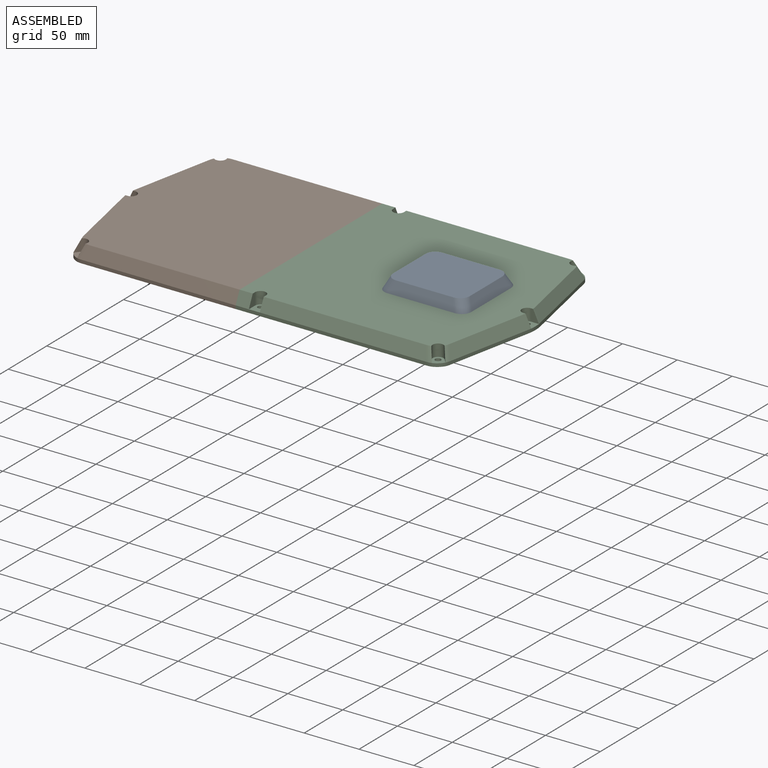
[diagram: assembled view]
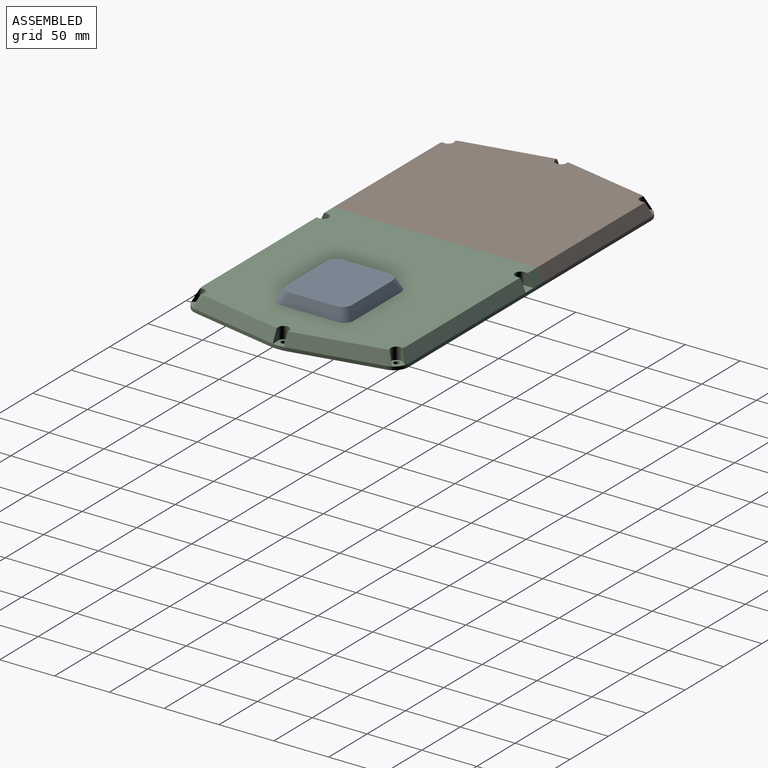
[diagram: assembled view, second angle]
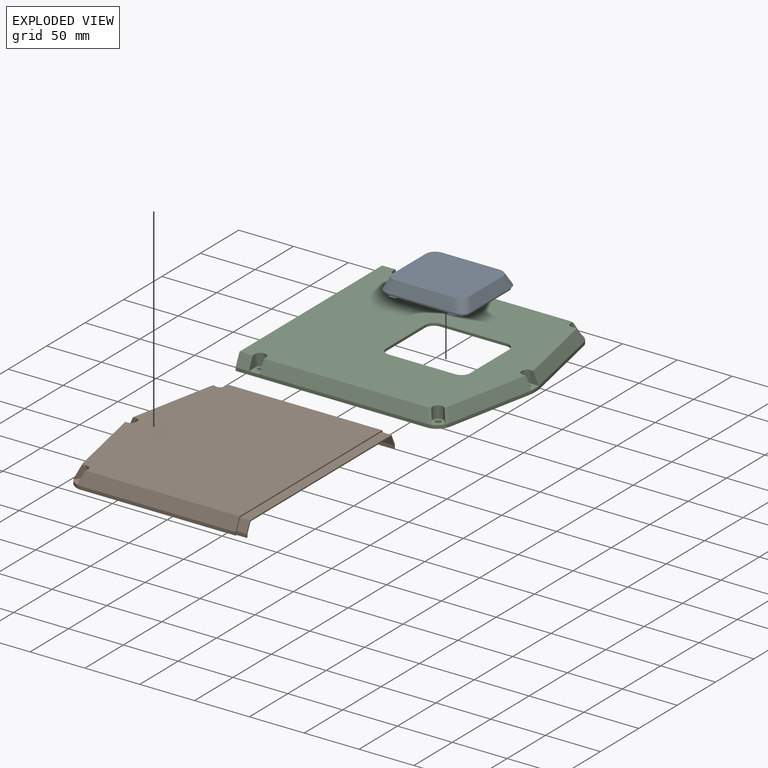
[diagram: exploded view]
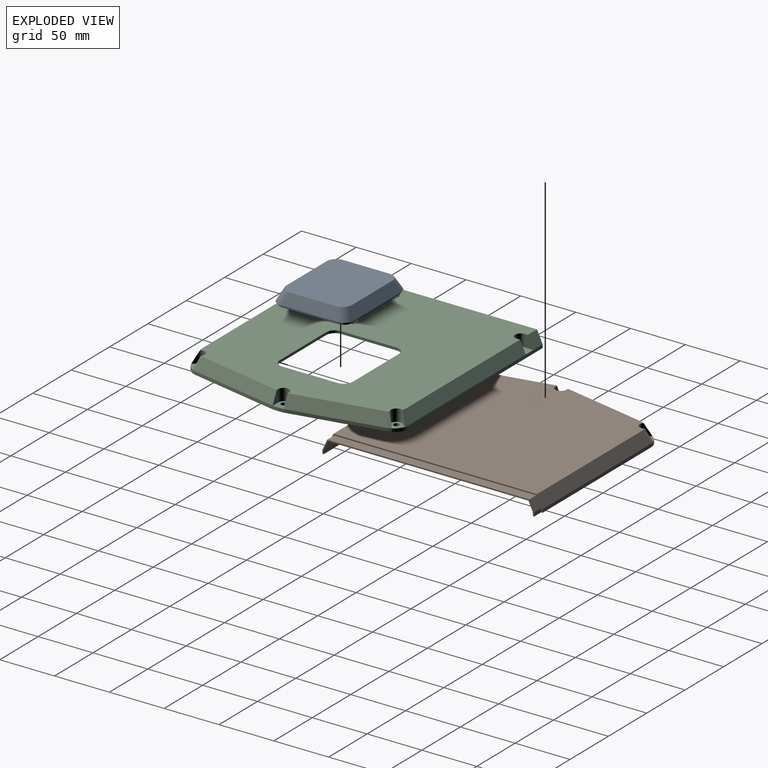
[diagram: exploded view, second angle]
ASSEMBLY  parts=3 mates=2
PART A: 79 faces, bbox 80.7x70.7x15 mm
  f0: plane 60.27x2.35mm, normal (0,1,0), area 141.6mm2, adj f3,f5,f20,f21,f34,f36
  f1: plane 66.37x6.95mm, normal (0,0,-1), area 113.6mm2, adj f18,f19,f20,f43,f48,f59,f61,f62
  f2: plane 66.37x6.95mm, normal (0,0,-1), area 113.6mm2, adj f15,f16,f21,f45,f47,f57,f58,f70
  f3: plane 45.78x1.6mm, normal (0,0,-1), area 73.2mm2, adj f0,f42,f44,f76
  f4: plane 45.78x1.6mm, normal (0,0,-1), area 73.2mm2, adj f17,f46,f49,f68
  f5: plane 79.33x69.33mm, normal (0,0,-1), area 393.8mm2, adj f0,f6,f7,f8,f9,f11,f12,f13
  f6: plane 61.2x10mm, normal (0,0.91,0.42), area 623.8mm2, adj f5,f10,f11,f14
  f7: plane 51.2x10mm, normal (-0.91,0,0.42), area 513.5mm2, adj f5,f10,f11,f12
  f8: plane 61.2x10mm, normal (0,-0.91,0.42), area 623.8mm2, adj f5,f10,f12,f13
  f9: plane 51.2x10mm, normal (0.91,0,0.42), area 513.5mm2, adj f5,f10,f13,f14
  f10: plane 70x60mm, normal (0,0,1), area 4133.3mm2, adj f6,f7,f8,f9,f11,f12,f13,f14
  f11: cylinder r=10mm len=14.32mm, axis (-0.39,0.39,-0.83), area 166.7mm2, adj f5,f6,f7,f10
  f12: cylinder r=10mm len=14.32mm, axis (-0.39,-0.39,-0.83), area 166.7mm2, adj f5,f7,f8,f10
  f13: cylinder r=10mm len=14.32mm, axis (0.39,-0.39,-0.83), area 166.7mm2, adj f5,f8,f9,f10
  f14: cylinder r=10mm len=14.32mm, axis (0.39,0.39,-0.83), area 166.7mm2, adj f5,f6,f9,f10
  f15: plane 50.27x2.35mm, normal (1,0,0), area 118.1mm2, adj f2,f5,f16,f21
  f16: extruded ~8.13x8.13mm, area 31mm2, adj f2,f5,f15,f17,f24,f47
  f17: plane 60.27x2.35mm, normal (0,-1,0), area 141.6mm2, adj f4,f5,f16,f18,f30,f32
  f18: extruded ~8.13x8.13mm, area 31mm2, adj f1,f5,f17,f19,f22,f48
  f19: plane 50.27x2.35mm, normal (-1,0,0), area 118.1mm2, adj f1,f5,f18,f20
  f20: extruded ~8.13x8.13mm, area 31mm2, adj f0,f1,f5,f19,f28,f43
  f21: extruded ~8.13x8.13mm, area 31mm2, adj f0,f2,f5,f15,f26,f45
  f22: plane 1.2x0.35mm, normal (-1,0,0), area 0.3mm2, adj f18,f32,f33,f38
  f23: plane 6x1.6mm, normal (0,0,-1), area 9.6mm2, adj f33,f48,f49,f59,f68
  f24: plane 1.2x0.35mm, normal (1,0,0), area 0.3mm2, adj f16,f30,f31,f39
  f25: plane 6x1.6mm, normal (0,0,-1), area 9.6mm2, adj f31,f46,f47,f58,f68
  f26: plane 1.2x0.35mm, normal (1,0,0), area 0.3mm2, adj f21,f34,f35,f40
  f27: plane 6x1.6mm, normal (0,0,-1), area 9.6mm2, adj f35,f44,f45,f57,f76
  f28: plane 1.2x0.35mm, normal (-1,0,0), area 0.3mm2, adj f20,f36,f37,f41
  f29: plane 6x1.6mm, normal (0,0,-1), area 9.6mm2, adj f37,f42,f43,f61,f76
  f30: plane 7.42x0.52mm, normal (0,-0.71,0.71), area 3.3mm2, adj f17,f24,f39,f46
  f31: plane 6.07x0.36mm, normal (0,-0.71,-0.71), area 3mm2, adj f24,f25,f39,f46
  f32: plane 7.42x0.52mm, normal (0,-0.71,0.71), area 3.3mm2, adj f17,f22,f38,f49
  f33: plane 6.07x0.36mm, normal (0,-0.71,-0.71), area 3mm2, adj f22,f23,f38,f49
  f34: plane 7.42x0.52mm, normal (0,0.71,0.71), area 3.3mm2, adj f0,f26,f40,f44
  f35: plane 6.07x0.36mm, normal (0,0.71,-0.71), area 3mm2, adj f26,f27,f40,f44
  f36: plane 7.42x0.52mm, normal (0,0.71,0.71), area 3.3mm2, adj f0,f28,f41,f42
  f37: plane 6.07x0.36mm, normal (0,0.71,-0.71), area 3mm2, adj f28,f29,f41,f42
  f38: plane 6.38x0.5mm, normal (0,-1,0), area 3.1mm2, adj f22,f32,f33,f49
  f39: plane 6.38x0.5mm, normal (0,-1,0), area 3.1mm2, adj f24,f30,f31,f46
  f40: plane 6.38x0.5mm, normal (0,1,0), area 3.1mm2, adj f26,f34,f35,f44
  f41: plane 6.38x0.5mm, normal (0,1,0), area 3.1mm2, adj f28,f36,f37,f42
  f42: cylinder r=1.25mm len=1.95mm, axis (0,-1,0), area 3.5mm2, adj f3,f29,f36,f37,f41,f76
  f43: cylinder r=1.25mm len=1.3mm, axis (0,-1,0), area 2.3mm2, adj f1,f20,f29,f61
  f44: cylinder r=1.25mm len=1.95mm, axis (0,1,0), area 3.5mm2, adj f3,f27,f34,f35,f40,f76
  f45: cylinder r=1.25mm len=1.3mm, axis (0,1,0), area 2.3mm2, adj f2,f21,f27,f57
  f46: cylinder r=1.25mm len=1.95mm, axis (0,1,0), area 3.5mm2, adj f4,f25,f30,f31,f39,f68
  f47: cylinder r=1.25mm len=1.3mm, axis (0,1,0), area 2.3mm2, adj f2,f16,f25,f58
  f48: cylinder r=1.25mm len=1.3mm, axis (0,1,0), area 2.3mm2, adj f1,f18,f23,f59
  f49: cylinder r=1.25mm len=1.95mm, axis (0,1,0), area 3.5mm2, adj f4,f23,f32,f33,f38,f68
  f50: bspline ~6.93x6.93mm, area 4.3mm2, adj f51,f60,f67,f78
  f51: plane 53.14x0.36mm, normal (0,0.42,0.91), area 21.3mm2, adj f50,f52,f69,f78
  f52: bspline ~6.93x6.93mm, area 4.3mm2, adj f51,f53,f71,f78
  f53: plane 43.14x0.36mm, normal (-0.42,0,0.91), area 17.3mm2, adj f52,f54,f72,f78
  f54: bspline ~6.93x6.93mm, area 4.3mm2, adj f53,f55,f74,f78
  f55: plane 53.14x0.36mm, normal (0,-0.42,0.91), area 21.3mm2, adj f54,f56,f77,f78
  f56: bspline ~6.93x6.93mm, area 4.3mm2, adj f55,f60,f63,f78
  f57: bspline ~1.25x1.2mm, area 0.8mm2, adj f2,f27,f45,f75
  f58: bspline ~1.25x1.2mm, area 0.8mm2, adj f2,f25,f47,f70
  f59: bspline ~1.25x1.2mm, area 0.8mm2, adj f1,f23,f48,f66
  f60: plane 43.14x0.36mm, normal (0.42,0,0.91), area 17.3mm2, adj f50,f56,f65,f78
  f61: bspline ~1.25x1.2mm, area 0.8mm2, adj f1,f29,f43,f62
  f62: extruded ~6.53x6.53mm, area 24.1mm2, adj f1,f61,f63,f64,f76
  f63: cylinder r=7.25mm len=10.55mm, axis (-0.39,0.39,-0.83), area 91.3mm2, adj f56,f62,f64,f65,f76,f77
  f64: plane 50.27x2.26mm, normal (1,0,0), area 113.7mm2, adj f1,f62,f63,f65,f66,f67
  f65: plane 50.2x7.57mm, normal (0.91,0,-0.42), area 389.8mm2, adj f60,f63,f64,f67
  f66: extruded ~6.53x6.53mm, area 24.1mm2, adj f1,f59,f64,f67,f68
  f67: cylinder r=7.25mm len=10.55mm, axis (-0.39,-0.39,-0.83), area 91.3mm2, adj f50,f64,f65,f66,f68,f69
  f68: plane 60.27x3.46mm, normal (0,1,0), area 151.4mm2, adj f4,f23,f25,f46,f49,f66,f67,f69
  f69: plane 60.2x7.57mm, normal (0,0.91,-0.42), area 473.3mm2, adj f51,f67,f68,f71
  f70: extruded ~6.53x6.53mm, area 24.1mm2, adj f2,f58,f68,f71,f73
  f71: cylinder r=7.25mm len=10.55mm, axis (0.39,-0.39,-0.83), area 91.3mm2, adj f52,f68,f69,f70,f72,f73
  f72: plane 50.2x7.57mm, normal (-0.91,0,-0.42), area 389.8mm2, adj f53,f71,f73,f74
  f73: plane 50.27x2.26mm, normal (-1,0,0), area 113.7mm2, adj f2,f70,f71,f72,f74,f75
  f74: cylinder r=7.25mm len=10.55mm, axis (0.39,0.39,-0.83), area 91.3mm2, adj f54,f72,f73,f75,f76,f77
  f75: extruded ~6.53x6.53mm, area 24.1mm2, adj f2,f57,f73,f74,f76
  f76: plane 60.27x3.46mm, normal (0,-1,0), area 151.4mm2, adj f3,f27,f29,f42,f44,f62,f63,f74
  f77: plane 60.2x7.57mm, normal (0,-0.91,-0.42), area 473.3mm2, adj f55,f63,f74,f76
  f78: plane 67.01x57.01mm, normal (0,0,-1), area 3780.7mm2, adj f50,f51,f52,f53,f54,f55,f56,f60
PART B: 69 faces, bbox 180.3x197x15 mm
  f0: plane 140.9x3mm, normal (0,-1,0), area 422.7mm2, adj f27,f38,f40,f62
  f1: plane 140.9x3mm, normal (0,1,0), area 422.7mm2, adj f37,f38,f41,f62
  f2: plane 149.45x8.71mm, normal (0,-0.91,-0.42), area 1410.9mm2, adj f3,f9,f18,f19,f24,f68
  f3: plane 182.75x172.74mm, normal (0,0,-1), area 29898.2mm2, adj f2,f4,f5,f6,f7,f8,f9,f10
  f4: cylinder r=12.65mm len=4.89mm, axis (0.33,-0.4,0.86), area 2.1mm2, adj f3,f6,f18
  f5: cylinder r=12.65mm len=4.89mm, axis (0.33,0.4,0.86), area 2.1mm2, adj f3,f8,f15
  f6: plane 78.82x19.45mm, normal (0.89,-0.18,-0.42), area 748.3mm2, adj f3,f4,f13,f17,f18,f25
  f7: plane 78.82x19.45mm, normal (0.89,0.18,-0.42), area 748.3mm2, adj f3,f10,f12,f15,f16,f26
  f8: plane 149.45x8.71mm, normal (0,0.91,-0.42), area 1410.9mm2, adj f3,f5,f14,f15,f23,f68
  f9: cylinder r=12.65mm len=4.89mm, axis (0.33,-0.4,0.86), area 2.1mm2, adj f2,f3,f18
  f10: cylinder r=12.65mm len=4.89mm, axis (0.33,0.4,0.86), area 2.1mm2, adj f3,f7,f15
  f11: cylinder r=7.35mm len=14.7mm, axis (0,0,1), area 269mm2, adj f3,f12,f13,f38
  f12: plane 11.65x4.14mm, normal (0,-1,0), area 30.4mm2, adj f3,f7,f11,f26,f38
  f13: plane 11.65x4.14mm, normal (0,1,0), area 30.4mm2, adj f3,f6,f11,f25,f38
  f14: plane 4.88x0.88mm, normal (0.77,-0.63,0), area 4.5mm2, adj f8,f15,f23,f38
  f15: cylinder r=7.35mm len=13.04mm, axis (0,0,1), area 244.3mm2, adj f3,f5,f7,f8,f10,f14,f16,f38
  f16: plane 4.88x0.88mm, normal (-0.77,0.63,0), area 4.5mm2, adj f7,f15,f26,f38
  f17: plane 4.88x0.88mm, normal (-0.77,-0.63,0), area 4.5mm2, adj f6,f18,f25,f38
  f18: cylinder r=7.35mm len=13.04mm, axis (0,0,1), area 244.3mm2, adj f2,f3,f4,f6,f9,f17,f19,f38
  f19: plane 4.88x0.88mm, normal (0.77,0.63,0), area 4.5mm2, adj f2,f18,f24,f38
  f20: plane 12.52x12.43mm, normal (0,0,1), area 80mm2, adj f28,f54,f55,f56,f61
  f21: plane 12.51x10mm, normal (0,0,1), area 92mm2, adj f32,f48,f49,f50,f60
  f22: plane 12.52x12.43mm, normal (0,0,1), area 80mm2, adj f36,f42,f43,f44,f59
  f23: plane 149.39x3mm, normal (0,1,0), area 448.2mm2, adj f8,f14,f38,f68
  f24: plane 149.39x3mm, normal (0,-1,0), area 448.2mm2, adj f2,f19,f38,f68
  f25: plane 78.76x16.07mm, normal (0.98,-0.2,0), area 241.1mm2, adj f6,f13,f17,f38
  f26: plane 78.76x16.07mm, normal (0.98,0.2,0), area 241.1mm2, adj f7,f12,f16,f38
  f27: extruded ~4.15x3mm, area 12.6mm2, adj f0,f28,f38,f58
  f28: cylinder r=15mm len=7.75mm, axis (0,0,1), area 30.6mm2, adj f20,f27,f29,f38
  f29: extruded ~3.95x3mm, area 12.6mm2, adj f28,f30,f38,f57
  f30: plane 79.87x16.3mm, normal (-0.98,-0.2,0), area 244.6mm2, adj f29,f31,f38,f53
  f31: extruded ~3x2.25mm, area 6.8mm2, adj f30,f32,f38,f52
  f32: cylinder r=40mm len=10mm, axis (0,0,1), area 30.1mm2, adj f21,f31,f33,f38
  f33: extruded ~3x2.25mm, area 6.8mm2, adj f32,f34,f38,f51
  f34: plane 79.87x16.3mm, normal (-0.98,0.2,0), area 244.6mm2, adj f33,f35,f38,f47
  f35: extruded ~3.95x3mm, area 12.6mm2, adj f34,f36,f38,f46
  f36: cylinder r=15mm len=7.75mm, axis (0,0,1), area 30.6mm2, adj f22,f35,f37,f38
  f37: extruded ~4.15x3mm, area 12.6mm2, adj f1,f36,f38,f45
  f38: plane 196x180.22mm, normal (0,0,-1), area 1647.8mm2, adj f0,f1,f11,f12,f13,f14,f15,f16
  f39: plane 185.76x165.69mm, normal (0,0,1), area 29031.3mm2, adj f40,f41,f42,f45,f46,f47,f48,f49
  f40: plane 140.9x11mm, normal (0,-0.91,0.42), area 1684.7mm2, adj f0,f39,f58,f62
  f41: plane 140.9x11mm, normal (0,0.91,0.42), area 1684.7mm2, adj f1,f39,f45,f62
  f42: cylinder r=5mm len=11mm, axis (0,0,1), area 171.2mm2, adj f22,f39,f43,f44,f45,f46
  f43: plane 9.34x4.35mm, normal (-0.77,-0.63,0), area 26.2mm2, adj f22,f42,f45
  f44: plane 9.34x4.35mm, normal (0.77,0.63,0), area 26.2mm2, adj f22,f42,f46
  f45: cylinder r=15mm len=12.93mm, axis (0.33,-0.4,0.86), area 52.2mm2, adj f37,f39,f41,f42,f43
  f46: cylinder r=15mm len=12.93mm, axis (0.33,-0.4,0.86), area 52.2mm2, adj f35,f39,f42,f44,f47
  f47: plane 79.87x20.49mm, normal (-0.89,0.18,0.42), area 957.7mm2, adj f34,f39,f46,f51
  f48: cylinder r=5mm len=11mm, axis (0,0,1), area 172.8mm2, adj f21,f39,f49,f50
  f49: plane 11x7.19mm, normal (0,-1,0), area 50.3mm2, adj f21,f39,f48,f51
  f50: plane 11x7.19mm, normal (0,1,0), area 50.3mm2, adj f21,f39,f48,f52
  f51: cylinder r=40mm len=11.3mm, axis (0.43,0,0.9), area 27.7mm2, adj f33,f39,f47,f49
  f52: cylinder r=40mm len=11.3mm, axis (0.43,0,0.9), area 27.7mm2, adj f31,f39,f50,f53
  f53: plane 79.87x20.49mm, normal (-0.89,-0.18,0.42), area 957.7mm2, adj f30,f39,f52,f57
  f54: cylinder r=5mm len=11mm, axis (0,0,1), area 171.2mm2, adj f20,f39,f55,f56,f57,f58
  f55: plane 9.34x4.35mm, normal (0.77,-0.63,0), area 26.2mm2, adj f20,f54,f57
  f56: plane 9.34x4.35mm, normal (-0.77,0.63,0), area 26.2mm2, adj f20,f54,f58
  f57: cylinder r=15mm len=12.93mm, axis (0.33,0.4,0.86), area 52.2mm2, adj f29,f39,f53,f54,f55
  f58: cylinder r=15mm len=12.93mm, axis (0.33,0.4,0.86), area 52.2mm2, adj f27,f39,f40,f54,f56
  f59: cylinder r=2.6mm len=5.2mm, axis (0,0,1), area 49mm2, adj f22,f38
  f60: cylinder r=2.6mm len=5.2mm, axis (0,0,1), area 49mm2, adj f21,f38
  f61: cylinder r=2.6mm len=5.2mm, axis (0,0,1), area 49mm2, adj f20,f38
  f62: plane 196x14mm, normal (1,0,0), area 247.6mm2, adj f0,f1,f38,f39,f40,f41,f63,f64
  f63: plane 9x3.27mm, normal (0,1,0), area 29.4mm2, adj f38,f62,f64,f68
  f64: plane 9.58x9mm, normal (0,0.91,0.42), area 95.2mm2, adj f62,f63,f65,f68
  f65: plane 184.28x9mm, normal (0,0,1), area 1658.5mm2, adj f62,f64,f66,f68
  f66: plane 9.58x9mm, normal (0,-0.91,0.42), area 95.2mm2, adj f62,f65,f67,f68
  f67: plane 9x3.27mm, normal (0,-1,0), area 29.4mm2, adj f38,f62,f66,f68
  f68: plane 193.21x12.85mm, normal (1,0,0), area 251.9mm2, adj f2,f3,f8,f23,f24,f38,f63,f64
PART C: 93 faces, bbox 204.8x197x15 mm
  f0: plane 187.59x182.75mm, normal (0,0,-1), area 27360.4mm2, adj f7,f8,f9,f10,f11,f12,f13,f14
  f1: plane 199.23x185.76mm, normal (0,0,1), area 30085.4mm2, adj f5,f6,f49,f50,f51,f52,f53,f56
  f2: plane 204.76x196mm, normal (0,0,-1), area 2066.6mm2, adj f3,f4,f15,f16,f17,f18,f19,f20
  f3: plane 174.44x3mm, normal (0,-1,0), area 523.3mm2, adj f2,f5,f47,f48,f52,f79
  f4: plane 174.44x3mm, normal (0,1,0), area 523.3mm2, adj f2,f6,f29,f37,f73,f79
  f5: plane 12.04x11mm, normal (0,-0.91,0.42), area 146.2mm2, adj f1,f3,f50,f79
  f6: plane 12.04x11mm, normal (0,0.91,0.42), area 146.2mm2, adj f1,f4,f72,f79
  f7: plane 149.6x8.71mm, normal (0,0.91,-0.42), area 1412.3mm2, adj f0,f13,f22,f23,f27,f33
  f8: cylinder r=12.65mm len=4.89mm, axis (-0.33,0.4,0.86), area 2.1mm2, adj f0,f10,f22
  f9: cylinder r=12.65mm len=4.89mm, axis (-0.33,-0.4,0.86), area 2.1mm2, adj f0,f12,f19
  f10: plane 78.82x19.45mm, normal (-0.89,0.18,-0.42), area 748.3mm2, adj f0,f8,f17,f21,f22,f34
  f11: plane 78.82x19.45mm, normal (-0.89,-0.18,-0.42), area 748.3mm2, adj f0,f14,f16,f19,f20,f35
  f12: plane 149.6x8.71mm, normal (0,-0.91,-0.42), area 1412.3mm2, adj f0,f9,f18,f19,f26,f36
  f13: cylinder r=12.65mm len=4.89mm, axis (-0.33,0.4,0.86), area 2.1mm2, adj f0,f7,f22
  f14: cylinder r=12.65mm len=4.89mm, axis (-0.33,-0.4,0.86), area 2.1mm2, adj f0,f11,f19
  f15: cylinder r=7.35mm len=14.7mm, axis (0,0,1), area 269mm2, adj f0,f2,f16,f17
  f16: plane 11.65x4.14mm, normal (0,1,0), area 30.4mm2, adj f0,f2,f11,f15,f35
  f17: plane 11.65x4.14mm, normal (0,-1,0), area 30.4mm2, adj f0,f2,f10,f15,f34
  f18: plane 4.88x0.88mm, normal (-0.77,0.63,0), area 4.5mm2, adj f2,f12,f19,f36
  f19: cylinder r=7.35mm len=13.04mm, axis (0,0,1), area 244.3mm2, adj f0,f2,f9,f11,f12,f14,f18,f20
  f20: plane 4.88x0.88mm, normal (0.77,-0.63,0), area 4.5mm2, adj f2,f11,f19,f35
  f21: plane 4.88x0.88mm, normal (0.77,0.63,0), area 4.5mm2, adj f2,f10,f22,f34
  f22: cylinder r=7.35mm len=13.04mm, axis (0,0,1), area 244.3mm2, adj f0,f2,f7,f8,f10,f13,f21,f23
  f23: plane 4.88x0.88mm, normal (-0.77,-0.63,0), area 4.5mm2, adj f2,f7,f22,f33
  f24: cylinder r=7.35mm len=14.7mm, axis (0,0,1), area 269mm2, adj f0,f2,f25,f26
  f25: plane 193.21x12.85mm, normal (-1,0,0), area 345.7mm2, adj f0,f2,f24,f28,f80,f81,f82,f83
  f26: plane 11.65x5.53mm, normal (1,0,0), area 46.9mm2, adj f0,f2,f12,f24,f36
  f27: plane 11.65x5.53mm, normal (1,0,0), area 46.9mm2, adj f0,f2,f7,f28,f33
  f28: cylinder r=7.35mm len=14.7mm, axis (0,0,1), area 269mm2, adj f0,f2,f25,f27
  f29: plane 13.12x10mm, normal (0,0,1), area 99.2mm2, adj f4,f70,f71,f72,f78
  f30: plane 12.52x12.43mm, normal (0,0,1), area 80mm2, adj f38,f65,f66,f67,f77
  f31: plane 12.52x12.43mm, normal (0,0,1), area 80mm2, adj f46,f53,f54,f55,f75
  f32: plane 12.51x10mm, normal (0,0,1), area 92mm2, adj f42,f59,f60,f61,f76
  f33: plane 149.54x3mm, normal (0,1,0), area 448.6mm2, adj f2,f7,f23,f27
  f34: plane 78.76x16.07mm, normal (-0.98,0.2,0), area 241.1mm2, adj f2,f10,f17,f21
  f35: plane 78.76x16.07mm, normal (-0.98,-0.2,0), area 241.1mm2, adj f2,f11,f16,f20
  f36: plane 149.54x3mm, normal (0,-1,0), area 448.6mm2, adj f2,f12,f18,f26
  f37: extruded ~4.15x3mm, area 12.6mm2, adj f2,f4,f38,f69
  f38: cylinder r=15mm len=7.75mm, axis (0,0,1), area 30.6mm2, adj f2,f30,f37,f39
  f39: extruded ~3.95x3mm, area 12.6mm2, adj f2,f38,f40,f68
  f40: plane 79.87x16.3mm, normal (0.98,0.2,0), area 244.6mm2, adj f2,f39,f41,f64
  f41: extruded ~3x2.25mm, area 6.8mm2, adj f2,f40,f42,f63
  f42: cylinder r=40mm len=10mm, axis (0,0,1), area 30.1mm2, adj f2,f32,f41,f43
  f43: extruded ~3x2.25mm, area 6.8mm2, adj f2,f42,f44,f62
  f44: plane 79.87x16.3mm, normal (0.98,-0.2,0), area 244.6mm2, adj f2,f43,f45,f58
  f45: extruded ~3.95x3mm, area 12.6mm2, adj f2,f44,f46,f57
  f46: cylinder r=15mm len=7.75mm, axis (0,0,1), area 30.6mm2, adj f2,f31,f45,f47
  f47: extruded ~4.15x3mm, area 12.6mm2, adj f2,f3,f46,f56
  f48: plane 13.12x10mm, normal (0,0,1), area 99.2mm2, adj f3,f49,f50,f51,f74
  f49: cylinder r=5mm len=11mm, axis (0,0,1), area 172.8mm2, adj f1,f48,f50,f51
  f50: plane 11x8.12mm, normal (1,0,0), area 61.1mm2, adj f1,f5,f48,f49
  f51: plane 11x8.12mm, normal (-1,0,0), area 61.1mm2, adj f1,f48,f49,f52
  f52: plane 152.4x11mm, normal (0,-0.91,0.42), area 1824.3mm2, adj f1,f3,f51,f56
  f53: cylinder r=5mm len=11mm, axis (0,0,1), area 171.2mm2, adj f1,f31,f54,f55,f56,f57
  f54: plane 9.34x4.35mm, normal (0.77,0.63,0), area 26.2mm2, adj f31,f53,f56
  f55: plane 9.34x4.35mm, normal (-0.77,-0.63,0), area 26.2mm2, adj f31,f53,f57
  f56: cylinder r=15mm len=12.93mm, axis (-0.33,0.4,0.86), area 52.2mm2, adj f1,f47,f52,f53,f54
  f57: cylinder r=15mm len=12.93mm, axis (-0.33,0.4,0.86), area 52.2mm2, adj f1,f45,f53,f55,f58
  f58: plane 79.87x20.49mm, normal (0.89,-0.18,0.42), area 957.7mm2, adj f1,f44,f57,f62
  f59: cylinder r=5mm len=11mm, axis (0,0,1), area 172.8mm2, adj f1,f32,f60,f61
  f60: plane 11x7.19mm, normal (0,1,0), area 50.3mm2, adj f1,f32,f59,f62
  f61: plane 11x7.19mm, normal (0,-1,0), area 50.3mm2, adj f1,f32,f59,f63
  f62: cylinder r=40mm len=11.3mm, axis (-0.43,0,0.9), area 27.7mm2, adj f1,f43,f58,f60
  f63: cylinder r=40mm len=11.3mm, axis (-0.43,0,0.9), area 27.7mm2, adj f1,f41,f61,f64
  f64: plane 79.87x20.49mm, normal (0.89,0.18,0.42), area 957.7mm2, adj f1,f40,f63,f68
  f65: cylinder r=5mm len=11mm, axis (0,0,1), area 171.2mm2, adj f1,f30,f66,f67,f68,f69
  f66: plane 9.34x4.35mm, normal (-0.77,0.63,0), area 26.2mm2, adj f30,f65,f68
  f67: plane 9.34x4.35mm, normal (0.77,-0.63,0), area 26.2mm2, adj f30,f65,f69
  f68: cylinder r=15mm len=12.93mm, axis (-0.33,-0.4,0.86), area 52.2mm2, adj f1,f39,f64,f65,f66
  f69: cylinder r=15mm len=12.93mm, axis (-0.33,-0.4,0.86), area 52.2mm2, adj f1,f37,f65,f67,f73
  f70: cylinder r=5mm len=11mm, axis (0,0,1), area 172.8mm2, adj f1,f29,f71,f72
  f71: plane 11x8.12mm, normal (-1,0,0), area 61.1mm2, adj f1,f29,f70,f73
  f72: plane 11x8.12mm, normal (1,0,0), area 61.1mm2, adj f1,f6,f29,f70
  f73: plane 152.4x11mm, normal (0,0.91,0.42), area 1824.3mm2, adj f1,f4,f69,f71
  f74: cylinder r=2.6mm len=5.2mm, axis (0,0,-1), area 49mm2, adj f2,f48
  f75: cylinder r=2.6mm len=5.2mm, axis (0,0,-1), area 49mm2, adj f2,f31
  f76: cylinder r=2.6mm len=5.2mm, axis (0,0,-1), area 49mm2, adj f2,f32
  f77: cylinder r=2.6mm len=5.2mm, axis (0,0,-1), area 49mm2, adj f2,f30
  f78: cylinder r=2.6mm len=5.2mm, axis (0,0,-1), area 49mm2, adj f2,f29
  f79: plane 196x14mm, normal (-1,0,0), area 247.6mm2, adj f1,f2,f3,f4,f5,f6,f80,f81
  f80: plane 9.69x3.27mm, normal (0,1,0), area 31.7mm2, adj f2,f25,f79,f81
  f81: plane 9.69x9.58mm, normal (0,0.91,-0.42), area 102.5mm2, adj f25,f79,f80,f82
  f82: plane 184.28x9.69mm, normal (0,0,-1), area 1786.4mm2, adj f25,f79,f81,f83
  f83: plane 9.69x9.58mm, normal (0,-0.91,-0.42), area 102.5mm2, adj f25,f79,f82,f84
  f84: plane 9.69x3.27mm, normal (0,-1,0), area 31.7mm2, adj f2,f25,f79,f83
  f85: plane 50.54x2.35mm, normal (-1,0,0), area 118.8mm2, adj f0,f1,f86,f92
  f86: cylinder r=8mm len=8mm, axis (0,0,1), area 29.5mm2, adj f0,f1,f85,f87
  f87: plane 60.54x2.35mm, normal (0,-1,0), area 142.3mm2, adj f0,f1,f86,f88
  f88: cylinder r=8mm len=8mm, axis (0,0,1), area 29.5mm2, adj f0,f1,f87,f89
  f89: plane 50.54x2.35mm, normal (1,0,0), area 118.8mm2, adj f0,f1,f88,f90
  f90: cylinder r=8mm len=8mm, axis (0,0,1), area 29.5mm2, adj f0,f1,f89,f91
  f91: plane 60.54x2.35mm, normal (0,1,0), area 142.3mm2, adj f0,f1,f90,f92
  f92: cylinder r=8mm len=8mm, axis (0,0,1), area 29.5mm2, adj f0,f1,f85,f91
PLACE A t=(-59.44,-6.86,58.86)mm
PLACE B t=(0.8,-104.86,58.86)mm
PLACE C t=(1.34,-104.86,58.86)mm
MATE fastened B.f65 <-> C.f82  axis (0,0,1) through (-184.2,-6.86,57.71)mm
MATE fastened A.f19 <-> C.f89  axis (-1,0,0) through (-97.71,-6.86,58.86)mm
